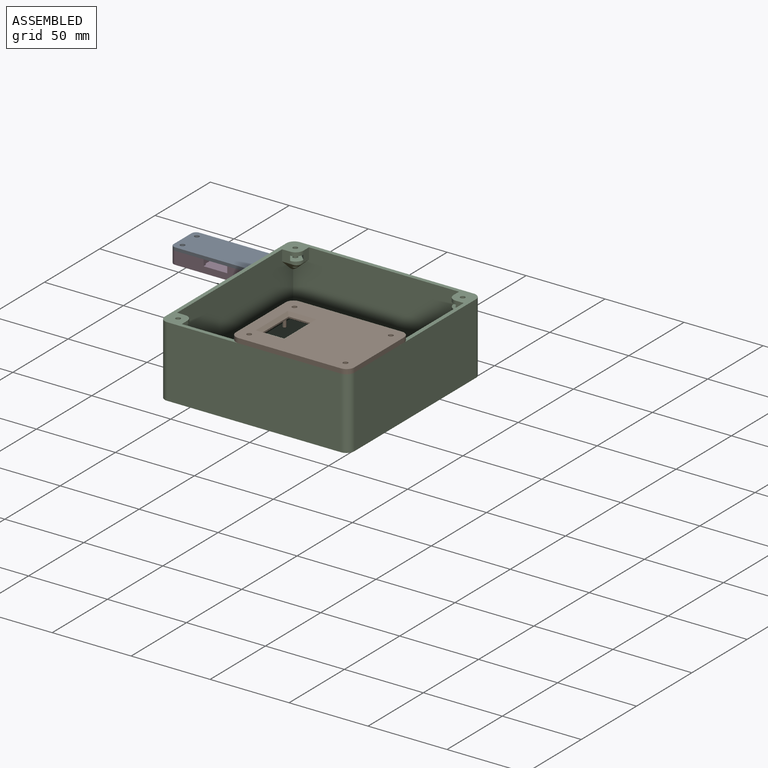
[diagram: assembled view]
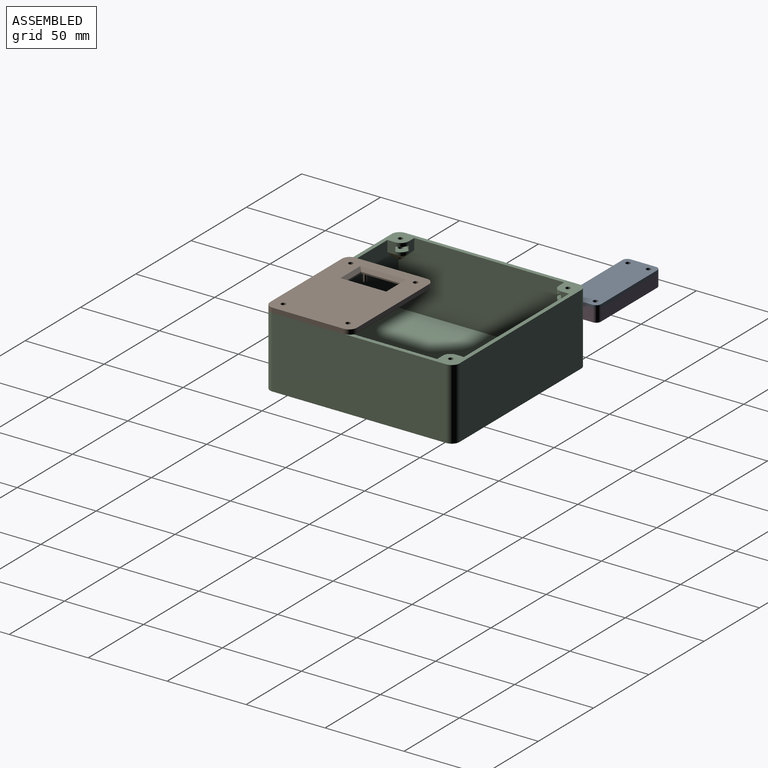
[diagram: assembled view, second angle]
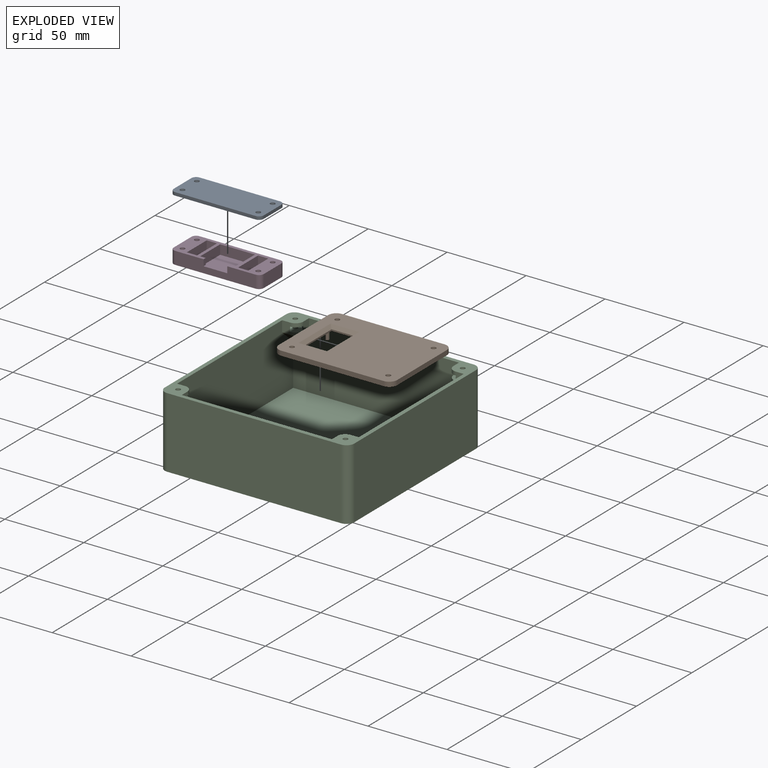
[diagram: exploded view]
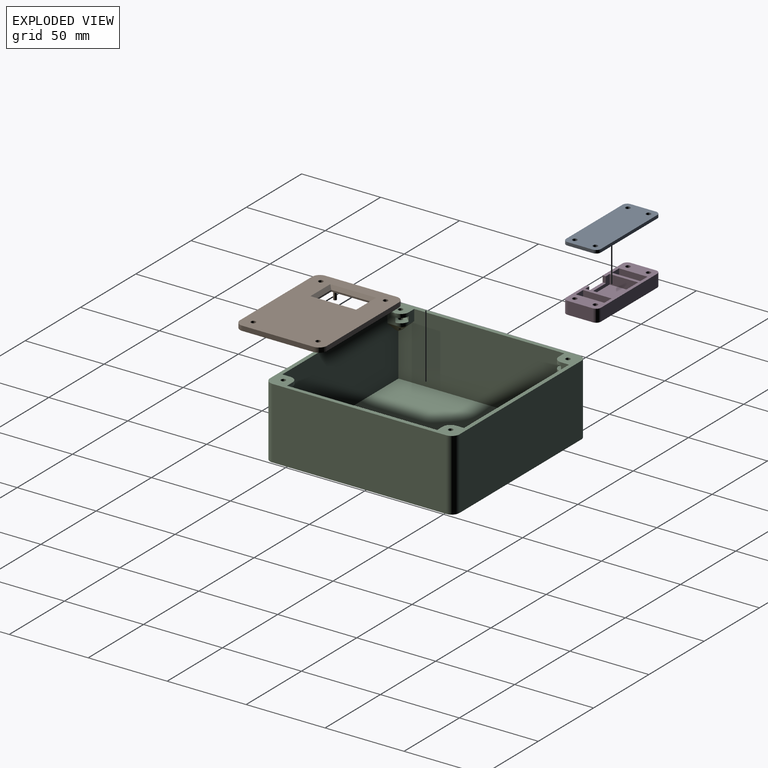
[diagram: exploded view, second angle]
ASSEMBLY  parts=4 mates=2
PART A: 14 faces, bbox 57x22x2 mm
  f0: plane 51x2mm, normal (0,1,0), area 102mm2, adj f4,f5,f6,f9
  f1: plane 16x2mm, normal (-1,0,0), area 32mm2, adj f4,f5,f6,f7
  f2: plane 51x2mm, normal (0,-1,0), area 102mm2, adj f4,f5,f7,f8
  f3: plane 16x2mm, normal (1,0,0), area 32mm2, adj f4,f5,f8,f9
  f4: plane 57x22mm, normal (0,0,1), area 1218mm2, adj f0,f1,f2,f3,f6,f7,f8,f9
  f5: plane 57x22mm, normal (0,0,-1), area 1218mm2, adj f0,f1,f2,f3,f6,f7,f8,f9
  f6: cylinder r=3mm len=3mm, axis (0,0,1), area 9.4mm2, adj f0,f1,f4,f5
  f7: cylinder r=3mm len=3mm, axis (0,0,-1), area 9.4mm2, adj f1,f2,f4,f5
  f8: cylinder r=3mm len=3mm, axis (0,0,1), area 9.4mm2, adj f2,f3,f4,f5
  f9: cylinder r=3mm len=3mm, axis (0,0,-1), area 9.4mm2, adj f0,f3,f4,f5
  f10: cylinder r=1.5mm len=3mm, axis (0,0,1), area 18.8mm2, adj f4,f5
  f11: cylinder r=1.5mm len=3mm, axis (0,0,1), area 18.8mm2, adj f4,f5
  f12: cylinder r=1.5mm len=3mm, axis (0,0,1), area 18.8mm2, adj f4,f5
  f13: cylinder r=1.5mm len=3mm, axis (0,0,1), area 18.8mm2, adj f4,f5
PART B: 30 faces, bbox 75x55x8 mm
  f0: plane 75x55mm, normal (0,0,1), area 3712.7mm2, adj f2,f3,f4,f5,f6,f7,f8,f9
  f1: plane 75x55mm, normal (0,0,-1), area 3553.3mm2, adj f2,f3,f4,f5,f6,f7,f8,f9
  f2: plane 65x3mm, normal (0,1,0), area 195mm2, adj f0,f1,f6,f9
  f3: plane 45x3mm, normal (-1,0,0), area 135mm2, adj f0,f1,f6,f7
  f4: plane 65x3mm, normal (0,-1,0), area 195mm2, adj f0,f1,f7,f8
  f5: plane 45x3mm, normal (1,0,0), area 135mm2, adj f0,f1,f8,f9
  f6: cylinder r=5mm len=5mm, axis (0,0,1), area 23.6mm2, adj f0,f1,f2,f3
  f7: cylinder r=5mm len=5mm, axis (0,0,-1), area 23.6mm2, adj f0,f1,f3,f4
  f8: cylinder r=5mm len=5mm, axis (0,0,1), area 23.6mm2, adj f0,f1,f4,f5
  f9: cylinder r=5mm len=5mm, axis (0,0,-1), area 23.6mm2, adj f0,f1,f2,f5
  f10: cylinder r=1.5mm len=3mm, axis (0,0,1), area 28.3mm2, adj f0,f1
  f11: cylinder r=1.5mm len=3mm, axis (0,0,1), area 28.3mm2, adj f0,f1
  f12: cylinder r=1.5mm len=3mm, axis (0,0,1), area 28.3mm2, adj f0,f1
  f13: cylinder r=1.5mm len=3mm, axis (0,0,1), area 28.3mm2, adj f0,f1
  f14: plane 14x1mm, normal (0,1,0), area 14mm2, adj f0,f15,f17,f27
  f15: plane 25x1mm, normal (-1,0,0), area 25mm2, adj f0,f14,f16,f26
  f16: plane 14x1mm, normal (0,-1,0), area 14mm2, adj f0,f15,f17,f28
  f17: plane 25x1mm, normal (1,0,0), area 25mm2, adj f0,f14,f16,f29
  f18: cylinder r=1mm len=5mm, axis (0,0,-1), area 31.4mm2, adj f0,f19
  f19: plane 2x2mm, normal (0,0,1), area 3.1mm2, adj f18
  f20: cylinder r=1mm len=5mm, axis (0,0,-1), area 31.4mm2, adj f0,f21
  f21: plane 2x2mm, normal (0,0,1), area 3.1mm2, adj f20
  f22: cylinder r=1mm len=5mm, axis (0,0,-1), area 31.4mm2, adj f0,f23
  f23: plane 2x2mm, normal (0,0,1), area 3.1mm2, adj f22
  f24: cylinder r=1mm len=5mm, axis (0,0,-1), area 31.4mm2, adj f0,f25
  f25: plane 2x2mm, normal (0,0,1), area 3.1mm2, adj f24
  f26: plane 29x2mm, normal (-0.71,0,-0.71), area 76.4mm2, adj f1,f15,f27,f28
  f27: plane 18x2mm, normal (0,0.71,-0.71), area 45.3mm2, adj f1,f14,f26,f29
  f28: plane 18x2mm, normal (0,-0.71,-0.71), area 45.3mm2, adj f1,f16,f26,f29
  f29: plane 29x2mm, normal (0.71,0,-0.71), area 76.4mm2, adj f1,f17,f27,f28
PART C: 67 faces, bbox 120.1x120.1x45.1 mm
  f0: plane 7x5mm, normal (0,1,0), area 35mm2, adj f10,f12,f45,f52
  f1: plane 7x5mm, normal (1,0,0), area 35mm2, adj f2,f12,f44,f52
  f2: plane 115.1x42.6mm, normal (0,1,0), area 4659.4mm2, adj f1,f4,f5,f10,f12,f18,f38,f44
  f3: plane 7x5mm, normal (0,1,0), area 35mm2, adj f5,f12,f37,f54
  f4: plane 7x5mm, normal (-1,0,0), area 35mm2, adj f2,f12,f38,f54
  f5: plane 115.1x42.6mm, normal (-1,0,0), area 4659.4mm2, adj f2,f3,f6,f11,f12,f18,f36,f37
  f6: plane 7x5mm, normal (0,-1,0), area 35mm2, adj f5,f12,f36,f55
  f7: plane 7x5mm, normal (-1,0,0), area 35mm2, adj f11,f12,f35,f55
  f8: plane 7x5mm, normal (0,-1,0), area 35mm2, adj f10,f12,f23,f58
  f9: plane 7x5mm, normal (1,0,0), area 35mm2, adj f11,f12,f24,f58
  f10: plane 115.1x42.6mm, normal (1,0,0), area 4659.4mm2, adj f0,f2,f8,f11,f12,f18,f23,f45
  f11: plane 115.1x42.6mm, normal (0,-1,0), area 4659.4mm2, adj f5,f7,f9,f10,f12,f18,f24,f35
  f12: plane 120x120mm, normal (0,0,1), area 1503.8mm2, adj f0,f1,f2,f3,f4,f5,f6,f7
  f13: plane 110x45mm, normal (0,-1,0), area 4950mm2, adj f12,f17,f19,f22
  f14: plane 110x45mm, normal (1,0,0), area 4950mm2, adj f12,f17,f19,f20
  f15: plane 110x45mm, normal (0,1,0), area 4950mm2, adj f12,f17,f20,f21
  f16: plane 110x45mm, normal (-1,0,0), area 4950mm2, adj f12,f17,f21,f22
  f17: plane 120x120mm, normal (0,0,-1), area 14378.5mm2, adj f13,f14,f15,f16,f19,f20,f21,f22
  f18: plane 115x115mm, normal (0,0,1), area 13225mm2, adj f2,f5,f10,f11
  f19: cylinder r=5mm len=45mm, axis (0,0,1), area 353.4mm2, adj f12,f13,f14,f17
  f20: cylinder r=5mm len=45mm, axis (0,0,-1), area 353.4mm2, adj f12,f14,f15,f17
  f21: cylinder r=5mm len=45mm, axis (0,0,1), area 353.4mm2, adj f12,f15,f16,f17
  f22: cylinder r=5mm len=45mm, axis (0,0,-1), area 353.4mm2, adj f12,f13,f16,f17
  f23: plane 6.75x6.54mm, normal (0,-0.67,-0.74), area 29.6mm2, adj f8,f10,f57,f58
  f24: plane 6.75x6.54mm, normal (0.67,0,-0.74), area 29.6mm2, adj f9,f11,f57,f58
  f25: plane 9.96x9.96mm, normal (0,0,1), area 49.4mm2, adj f26,f28,f29,f58,f59
  f26: plane 5.01x5.01mm, normal (-0.71,-0.71,0), area 21.3mm2, adj f25,f27,f29,f58
  f27: plane 9.96x9.96mm, normal (0,0,-1), area 49.4mm2, adj f26,f28,f29,f58,f66
  f28: plane 5.01x5.01mm, normal (0.71,0.71,0), area 21.3mm2, adj f25,f27,f29,f58
  f29: plane 4.95x4.95mm, normal (0.71,-0.71,0), area 21mm2, adj f25,f26,f27,f28
  f30: plane 5.01x5.01mm, normal (-0.71,0.71,0), area 21.3mm2, adj f31,f32,f34,f55
  f31: plane 9.96x9.96mm, normal (0,0,1), area 49.4mm2, adj f30,f33,f34,f55,f60
  f32: plane 9.96x9.96mm, normal (0,0,-1), area 49.4mm2, adj f30,f33,f34,f55,f65
  f33: plane 5.01x5.01mm, normal (0.71,-0.71,0), area 21.3mm2, adj f31,f32,f34,f55
  f34: plane 4.95x4.95mm, normal (-0.71,-0.71,0), area 21mm2, adj f30,f31,f32,f33
  f35: plane 6.75x6.54mm, normal (-0.67,0,-0.74), area 29.6mm2, adj f7,f11,f55,f56
  f36: plane 6.75x6.54mm, normal (0,-0.67,-0.74), area 29.6mm2, adj f5,f6,f55,f56
  f37: plane 6.75x6.54mm, normal (0,0.67,-0.74), area 29.6mm2, adj f3,f5,f53,f54
  f38: plane 6.75x6.54mm, normal (-0.67,0,-0.74), area 29.6mm2, adj f2,f4,f53,f54
  f39: plane 5.01x5.01mm, normal (0.71,0.71,0), area 21.3mm2, adj f40,f41,f43,f54
  f40: plane 9.96x9.96mm, normal (0,0,1), area 49.4mm2, adj f39,f42,f43,f54,f61
  f41: plane 9.96x9.96mm, normal (0,0,-1), area 49.4mm2, adj f39,f42,f43,f54,f64
  f42: plane 5.01x5.01mm, normal (-0.71,-0.71,0), area 21.3mm2, adj f40,f41,f43,f54
  f43: plane 4.95x4.95mm, normal (-0.71,0.71,0), area 21mm2, adj f39,f40,f41,f42
  f44: plane 6.75x6.54mm, normal (0.67,0,-0.74), area 29.6mm2, adj f1,f2,f51,f52
  f45: plane 6.75x6.54mm, normal (0,0.67,-0.74), area 29.6mm2, adj f0,f10,f51,f52
  f46: plane 5.01x5.01mm, normal (0.71,-0.71,0), area 21.3mm2, adj f47,f48,f50,f52
  f47: plane 9.96x9.96mm, normal (0,0,1), area 49.4mm2, adj f46,f49,f50,f52,f62
  f48: plane 9.96x9.96mm, normal (0,0,-1), area 49.4mm2, adj f46,f49,f50,f52,f63
  f49: plane 5.01x5.01mm, normal (-0.71,0.71,0), area 21.3mm2, adj f47,f48,f50,f52
  f50: plane 4.95x4.95mm, normal (0.71,0.71,0), area 21mm2, adj f46,f47,f48,f49
  f51: cylinder r=5mm len=11.88mm, axis (0.6,0.6,0.54), area 53.6mm2, adj f2,f10,f44,f45,f52,f62
  f52: cylinder r=5mm len=7.52mm, axis (0,0,-1), area 34mm2, adj f0,f1,f12,f44,f45,f46,f47,f48
  f53: cylinder r=5mm len=11.88mm, axis (-0.6,0.6,0.54), area 53.6mm2, adj f2,f5,f37,f38,f54,f61
  f54: cylinder r=5mm len=7.52mm, axis (0,0,-1), area 34mm2, adj f3,f4,f12,f37,f38,f39,f40,f41
  f55: cylinder r=5mm len=7.52mm, axis (0,0,-1), area 34mm2, adj f6,f7,f12,f30,f31,f32,f33,f35
  f56: cylinder r=5mm len=11.88mm, axis (-0.6,-0.6,0.54), area 53.6mm2, adj f5,f11,f35,f36,f55,f60
  f57: cylinder r=5mm len=11.88mm, axis (0.6,-0.6,0.54), area 53.6mm2, adj f10,f11,f23,f24,f58,f59
  f58: cylinder r=5mm len=7.52mm, axis (0,0,-1), area 34mm2, adj f8,f9,f12,f23,f24,f25,f26,f27
  f59: cylinder r=1.5mm len=6.8mm, axis (0,0,1), area 53.9mm2, adj f25,f57
  f60: cylinder r=1.5mm len=6.8mm, axis (0,0,1), area 53.9mm2, adj f31,f56
  f61: cylinder r=1.5mm len=6.8mm, axis (0,0,1), area 53.9mm2, adj f40,f53
  f62: cylinder r=1.5mm len=6.8mm, axis (0,0,1), area 53.9mm2, adj f47,f51
  f63: cylinder r=1.5mm len=3mm, axis (0,0,1), area 21.7mm2, adj f12,f48
  f64: cylinder r=1.5mm len=3mm, axis (0,0,1), area 21.7mm2, adj f12,f41
  f65: cylinder r=1.5mm len=3mm, axis (0,0,1), area 21.7mm2, adj f12,f32
  f66: cylinder r=1.5mm len=3mm, axis (0,0,1), area 21.7mm2, adj f12,f27
PART D: 60 faces, bbox 57x22x8 mm
  f0: cylinder r=1.5mm len=5.5mm, axis (0,0,1), area 51.8mm2, adj f4,f55
  f1: cylinder r=1.5mm len=5.5mm, axis (0,0,1), area 51.8mm2, adj f4,f48
  f2: cylinder r=1.5mm len=5.5mm, axis (0,0,1), area 51.8mm2, adj f4,f41
  f3: cylinder r=1.5mm len=5.5mm, axis (0,0,1), area 51.8mm2, adj f4,f34
  f4: plane 57x22mm, normal (0,0,1), area 558mm2, adj f0,f1,f2,f3,f5,f6,f7,f8
  f5: plane 51x8mm, normal (0,-1,0), area 348mm2, adj f4,f9,f25,f26,f27,f56,f59
  f6: plane 16x8mm, normal (1,0,0), area 128mm2, adj f4,f9,f56,f57
  f7: plane 51x8mm, normal (0,1,0), area 408mm2, adj f4,f9,f57,f58
  f8: plane 16x8mm, normal (-1,0,0), area 128mm2, adj f4,f9,f58,f59
  f9: plane 57x22mm, normal (0,0,-1), area 1136.5mm2, adj f5,f6,f7,f8,f28,f29,f30,f31
  f10: plane 18x6mm, normal (1,0,0), area 108mm2, adj f4,f11,f21,f22
  f11: plane 22x6mm, normal (0,-1,0), area 132mm2, adj f4,f10,f12,f22
  f12: plane 18x6mm, normal (-1,0,0), area 108mm2, adj f4,f11,f21,f22
  f13: plane 6.5x6mm, normal (0,-1,0), area 39mm2, adj f4,f14,f19,f23
  f14: plane 18x6mm, normal (-1,0,0), area 108mm2, adj f4,f13,f15,f23
  f15: plane 6.5x6mm, normal (0,1,0), area 39mm2, adj f4,f14,f19,f23
  f16: plane 6.5x6mm, normal (0,1,0), area 39mm2, adj f4,f17,f20,f24
  f17: plane 18x6mm, normal (1,0,0), area 108mm2, adj f4,f16,f18,f24
  f18: plane 6.5x6mm, normal (0,-1,0), area 39mm2, adj f4,f17,f20,f24
  f19: plane 18x6mm, normal (1,0,0), area 108mm2, adj f4,f13,f15,f23
  f20: plane 18x6mm, normal (-1,0,0), area 108mm2, adj f4,f16,f18,f24
  f21: plane 22x6mm, normal (0,1,0), area 72mm2, adj f4,f10,f12,f22,f25,f26,f27
  f22: plane 22x18mm, normal (0,0,1), area 396mm2, adj f10,f11,f12,f21
  f23: plane 18x6.5mm, normal (0,0,1), area 117mm2, adj f13,f14,f15,f19
  f24: plane 18x6.5mm, normal (0,0,1), area 117mm2, adj f16,f17,f18,f20
  f25: plane 4x2mm, normal (1,0,0), area 8mm2, adj f4,f5,f21,f26
  f26: plane 15x2mm, normal (0,0,1), area 30mm2, adj f5,f21,f25,f27
  f27: plane 4x2mm, normal (-1,0,0), area 8mm2, adj f4,f5,f21,f26
  f28: plane 2.82x2.5mm, normal (0.87,-0.5,0), area 8.1mm2, adj f9,f29,f33,f34
  f29: plane 3.25x2.5mm, normal (0,-1,0), area 8.1mm2, adj f9,f28,f30,f34
  f30: plane 2.81x2.5mm, normal (-0.86,-0.5,0), area 8.1mm2, adj f9,f29,f31,f34
  f31: plane 2.82x2.5mm, normal (-0.87,0.5,0), area 8.1mm2, adj f9,f30,f32,f34
  f32: plane 3.25x2.5mm, normal (0,1,0), area 8.1mm2, adj f9,f31,f33,f34
  f33: plane 2.81x2.5mm, normal (0.86,0.5,0), area 8.1mm2, adj f9,f28,f32,f34
  f34: plane 6.5x5.64mm, normal (0,0,-1), area 20.4mm2, adj f3,f28,f29,f30,f31,f32,f33
  f35: plane 3.25x2.5mm, normal (-0.01,-1,0), area 8.1mm2, adj f9,f36,f40,f41
  f36: plane 2.84x2.5mm, normal (-0.87,-0.49,0), area 8.1mm2, adj f9,f35,f37,f41
  f37: plane 2.79x2.5mm, normal (-0.86,0.51,0), area 8.1mm2, adj f9,f36,f38,f41
  f38: plane 3.25x2.5mm, normal (0.01,1,0), area 8.1mm2, adj f9,f37,f39,f41
  f39: plane 2.84x2.5mm, normal (0.87,0.49,0), area 8.1mm2, adj f9,f38,f40,f41
  f40: plane 2.79x2.5mm, normal (0.86,-0.51,0), area 8.1mm2, adj f9,f35,f39,f41
  f41: plane 6.5x5.67mm, normal (0,0,-1), area 20.4mm2, adj f2,f35,f36,f37,f38,f39,f40
  f42: plane 2.79x2.5mm, normal (0.86,-0.51,0), area 8.1mm2, adj f9,f43,f47,f48
  f43: plane 3.25x2.5mm, normal (-0.02,-1,0), area 8.1mm2, adj f9,f42,f44,f48
  f44: plane 2.84x2.5mm, normal (-0.87,-0.49,0), area 8.1mm2, adj f9,f43,f45,f48
  f45: plane 2.79x2.5mm, normal (-0.86,0.51,0), area 8.1mm2, adj f9,f44,f46,f48
  f46: plane 3.25x2.5mm, normal (0.02,1,0), area 8.1mm2, adj f9,f45,f47,f48
  f47: plane 2.84x2.5mm, normal (0.87,0.49,0), area 8.1mm2, adj f9,f42,f46,f48
  f48: plane 6.5x5.68mm, normal (0,0,-1), area 20.4mm2, adj f1,f42,f43,f44,f45,f46,f47
  f49: plane 2.82x2.5mm, normal (0.87,-0.5,0), area 8.1mm2, adj f9,f50,f54,f55
  f50: plane 3.25x2.5mm, normal (0,-1,0), area 8.1mm2, adj f9,f49,f51,f55
  f51: plane 2.81x2.5mm, normal (-0.87,-0.5,0), area 8.1mm2, adj f9,f50,f52,f55
  f52: plane 2.82x2.5mm, normal (-0.87,0.5,0), area 8.1mm2, adj f9,f51,f53,f55
  f53: plane 3.25x2.5mm, normal (0,1,0), area 8.1mm2, adj f9,f52,f54,f55
  f54: plane 2.81x2.5mm, normal (0.87,0.5,0), area 8.1mm2, adj f9,f49,f53,f55
  f55: plane 6.5x5.63mm, normal (0,0,-1), area 20.4mm2, adj f0,f49,f50,f51,f52,f53,f54
  f56: cylinder r=3mm len=8mm, axis (0,0,1), area 37.7mm2, adj f4,f5,f6,f9
  f57: cylinder r=3mm len=8mm, axis (0,0,-1), area 37.7mm2, adj f4,f6,f7,f9
  f58: cylinder r=3mm len=8mm, axis (0,0,1), area 37.7mm2, adj f4,f7,f8,f9
  f59: cylinder r=3mm len=8mm, axis (0,0,-1), area 37.7mm2, adj f4,f5,f8,f9
PLACE A at identity
PLACE B rot(axis=(1,0,0),180deg) t=(139.8,105.11,18)mm
PLACE C t=(94.8,0,-30)mm fixed
PLACE D t=(0,51.43,-8)mm fixed
MATE slider B.f13 <-> C.f61  axis (0,0,-1) through (147.8,-53,15)mm
MATE slider D.f1 <-> A.f12  axis (0,0,1) through (24,44.93,0)mm
